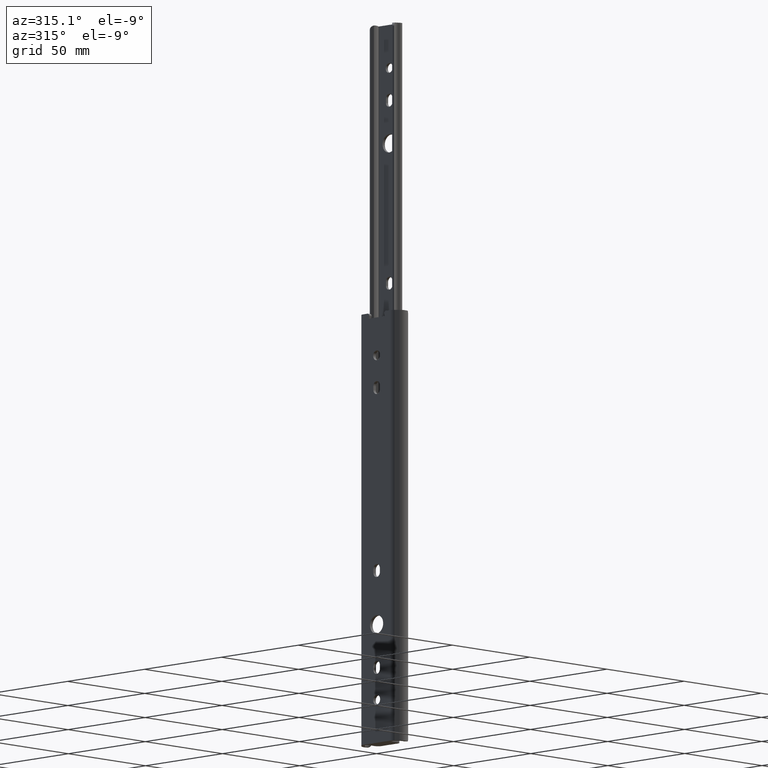
[diagram: clean part render]
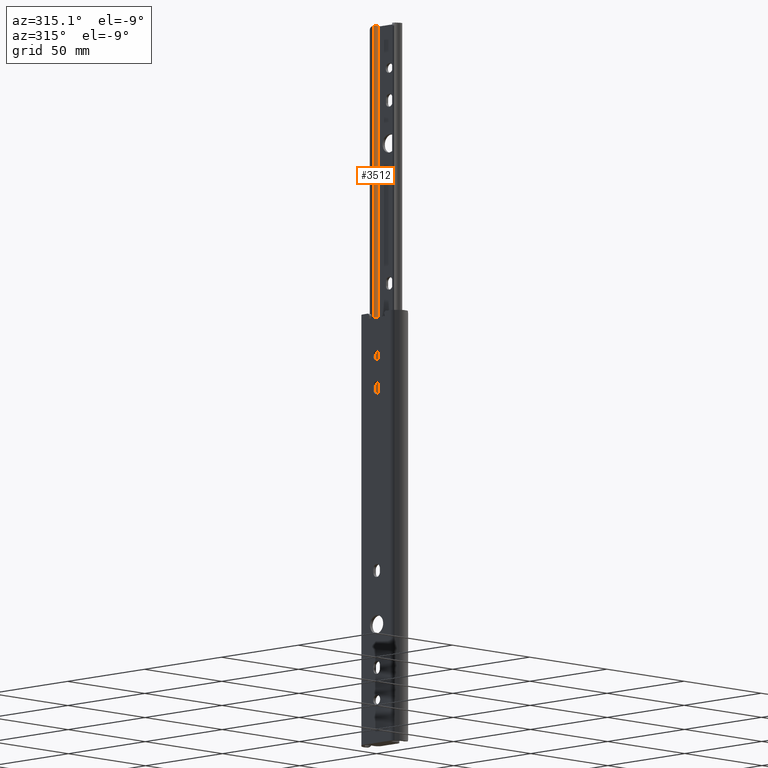
[diagram: same view with one face highlighted and labeled with its STEP entity id]
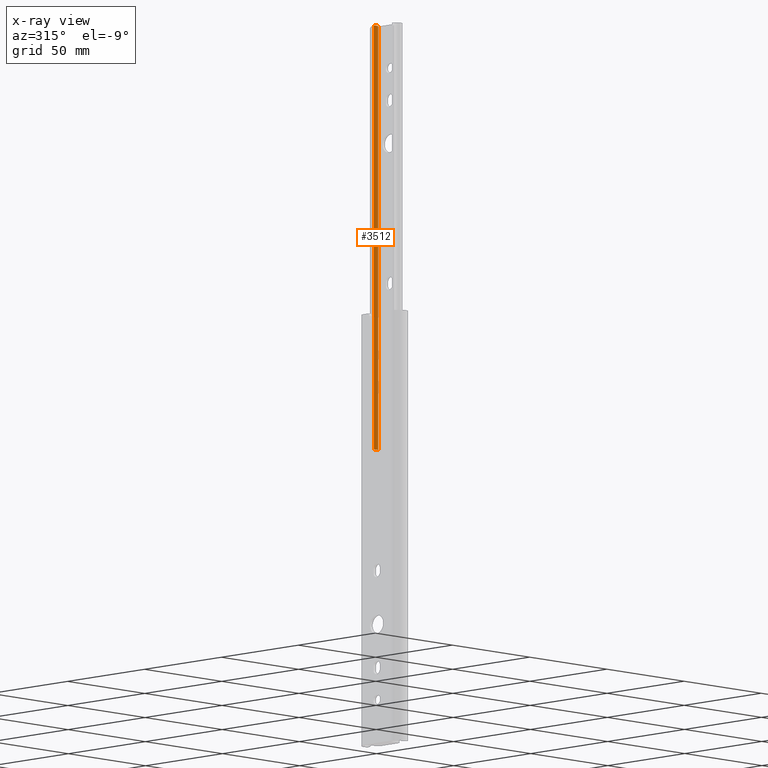
[diagram: x-ray of the same camera — body ghosted, the highlighted face saturated]
A machine part, auxiliary view. The second image highlights one B-rep face of the part: STEP entity #3512.
The next image is the same camera in x-ray: the body ghosted, the highlighted face saturated — about 0% of this face is hidden behind the body in this view.
In plain terms, the highlighted cylindrical surface (edge-blend (fillet) strip) has radius 3.78 mm, axis along (0, 0, 1).
Its self-contained STEP definition (entity closure, byte-faithful):
#12 = CARTESIAN_POINT ( 'NONE',  ( -5.406398501078599317, 5.905545358313276871, -196.9658390708930824 ) ) ;
#34 = CARTESIAN_POINT ( 'NONE',  ( -5.032699519243118758, 5.811691569664062307, -197.0000000000000000 ) ) ;
#99 = CARTESIAN_POINT ( 'NONE',  ( -5.159854084101075600, 5.836815177986080627, 1.651003261838515058E-17 ) ) ;
#146 = ORIENTED_EDGE ( 'NONE', *, *, #4303, .F. ) ;
#175 = DIRECTION ( 'NONE',  ( 0.0000000000000000000, 0.0000000000000000000, 1.000000000000000000 ) ) ;
#312 = AXIS2_PLACEMENT_3D ( 'NONE', #3180, #175, #4107 ) ;
#319 = AXIS2_PLACEMENT_3D ( 'NONE', #2693, #1995, #645 ) ;
#352 = CIRCLE ( 'NONE', #1883, 3.779999999999999361 ) ;
#422 = EDGE_CURVE ( 'NONE', #1317, #451, #3293, .T. ) ;
#451 = VERTEX_POINT ( 'NONE', #972 ) ;
#498 = B_SPLINE_CURVE_WITH_KNOTS ( 'NONE', 3,
 ( #1451, #99, #1430, #1128 ),
 .UNSPECIFIED., .F., .F.,
 ( 4, 4 ),
 ( 1.858546467661202228E-20, 0.0003868157594335304818 ),
 .UNSPECIFIED. ) ;
#592 = VECTOR ( 'NONE', #714, 1000.000000000000000 ) ;
#645 = DIRECTION ( 'NONE',  ( 1.000000000000000000, 0.0000000000000000000, 0.0000000000000000000 ) ) ;
#714 = DIRECTION ( 'NONE',  ( 0.0000000000000000000, 0.0000000000000000000, 1.000000000000000000 ) ) ;
#899 = EDGE_CURVE ( 'NONE', #904, #1317, #352, .T. ) ;
#904 = VERTEX_POINT ( 'NONE', #949 ) ;
#949 = CARTESIAN_POINT ( 'NONE',  ( -5.032699519243118758, 5.811691569664062307, -197.0000000000000000 ) ) ;
#972 = CARTESIAN_POINT ( 'NONE',  ( -1.857624445539639346, 6.635004046627742014, 0.0000000000000000000 ) ) ;
#1128 = CARTESIAN_POINT ( 'NONE',  ( -5.406398501078599317, 5.905545358313276871, -0.03416092910699108920 ) ) ;
#1317 = VERTEX_POINT ( 'NONE', #2001 ) ;
#1320 = CARTESIAN_POINT ( 'NONE',  ( -5.284426837097760732, 5.868209361716155037, -196.9889843978303077 ) ) ;
#1334 = VECTOR ( 'NONE', #2929, 1000.000000000000000 ) ;
#1430 = CARTESIAN_POINT ( 'NONE',  ( -5.284426837097759844, 5.868209361716154149, -0.01101560216970885395 ) ) ;
#1451 = CARTESIAN_POINT ( 'NONE',  ( -5.032699519243118758, 5.811691569664062307, 0.0000000000000000000 ) ) ;
#1580 = CARTESIAN_POINT ( 'NONE',  ( -4.299999999999982947, 9.520000000000038654, -197.0000000000000000 ) ) ;
#1639 = B_SPLINE_CURVE_WITH_KNOTS ( 'NONE', 3,
 ( #4298, #1320, #2645, #34 ),
 .UNSPECIFIED., .F., .F.,
 ( 4, 4 ),
 ( 0.0000000000000000000, 0.0003868157594335257655 ),
 .UNSPECIFIED. ) ;
#1650 = CARTESIAN_POINT ( 'NONE',  ( -5.032699519243118758, 5.811691569664062307, 0.0000000000000000000 ) ) ;
#1774 = CARTESIAN_POINT ( 'NONE',  ( -5.406398501078599317, 5.905545358313276871, -197.0000000000000000 ) ) ;
#1883 = AXIS2_PLACEMENT_3D ( 'NONE', #1580, #3203, #3938 ) ;
#1928 = CARTESIAN_POINT ( 'NONE',  ( -1.857624445539639346, 6.635004046627742014, -197.0000000000000000 ) ) ;
#1995 = DIRECTION ( 'NONE',  ( 0.0000000000000000000, 0.0000000000000000000, 1.000000000000000000 ) ) ;
#2001 = CARTESIAN_POINT ( 'NONE',  ( -1.857624445539639346, 6.635004046627742014, -197.0000000000000000 ) ) ;
#2444 = EDGE_CURVE ( 'NONE', #3532, #3404, #3363, .T. ) ;
#2645 = CARTESIAN_POINT ( 'NONE',  ( -5.159854084101077376, 5.836815177986080627, -197.0000000000000000 ) ) ;
#2693 = CARTESIAN_POINT ( 'NONE',  ( -4.299999999999982947, 9.520000000000038654, -197.0000000000000000 ) ) ;
#2744 = CIRCLE ( 'NONE', #312, 3.779999999999999361 ) ;
#2771 = EDGE_LOOP ( 'NONE', ( #146, #4293, #3037, #2920, #3225, #3803 ) ) ;
#2840 = VERTEX_POINT ( 'NONE', #1650 ) ;
#2920 = ORIENTED_EDGE ( 'NONE', *, *, #3612, .T. ) ;
#2929 = DIRECTION ( 'NONE',  ( 0.0000000000000000000, 0.0000000000000000000, 1.000000000000000000 ) ) ;
#2995 = CYLINDRICAL_SURFACE ( 'NONE', #319, 3.779999999999999361 ) ;
#3037 = ORIENTED_EDGE ( 'NONE', *, *, #2444, .F. ) ;
#3180 = CARTESIAN_POINT ( 'NONE',  ( -4.299999999999982947, 9.520000000000038654, 0.0000000000000000000 ) ) ;
#3203 = DIRECTION ( 'NONE',  ( 0.0000000000000000000, 0.0000000000000000000, 1.000000000000000000 ) ) ;
#3225 = ORIENTED_EDGE ( 'NONE', *, *, #899, .T. ) ;
#3293 = LINE ( 'NONE', #1928, #1334 ) ;
#3363 = LINE ( 'NONE', #1774, #592 ) ;
#3404 = VERTEX_POINT ( 'NONE', #3822 ) ;
#3480 = FACE_OUTER_BOUND ( 'NONE', #2771, .T. ) ;
#3512 = ADVANCED_FACE ( 'NONE', ( #3480 ), #2995, .T. ) ;
#3532 = VERTEX_POINT ( 'NONE', #12 ) ;
#3612 = EDGE_CURVE ( 'NONE', #3532, #904, #1639, .T. ) ;
#3739 = EDGE_CURVE ( 'NONE', #2840, #3404, #498, .T. ) ;
#3803 = ORIENTED_EDGE ( 'NONE', *, *, #422, .T. ) ;
#3822 = CARTESIAN_POINT ( 'NONE',  ( -5.406398501078599317, 5.905545358313276871, -0.03416092910699108920 ) ) ;
#3938 = DIRECTION ( 'NONE',  ( 1.000000000000000000, 0.0000000000000000000, 0.0000000000000000000 ) ) ;
#4107 = DIRECTION ( 'NONE',  ( 1.000000000000000000, 0.0000000000000000000, 0.0000000000000000000 ) ) ;
#4293 = ORIENTED_EDGE ( 'NONE', *, *, #3739, .T. ) ;
#4298 = CARTESIAN_POINT ( 'NONE',  ( -5.406398501078599317, 5.905545358313276871, -196.9658390708930824 ) ) ;
#4303 = EDGE_CURVE ( 'NONE', #2840, #451, #2744, .T. ) ;